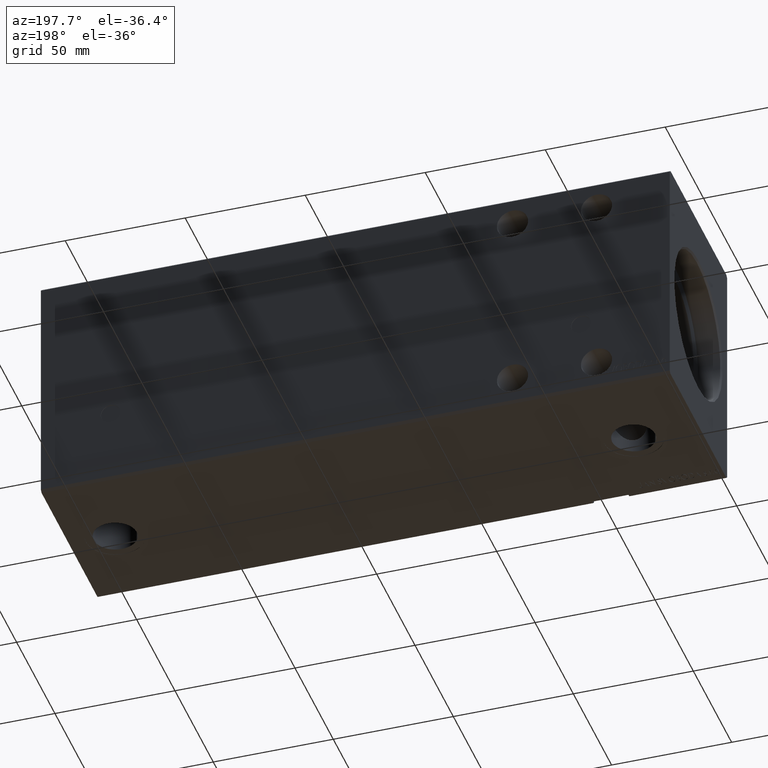
[diagram: clean part render]
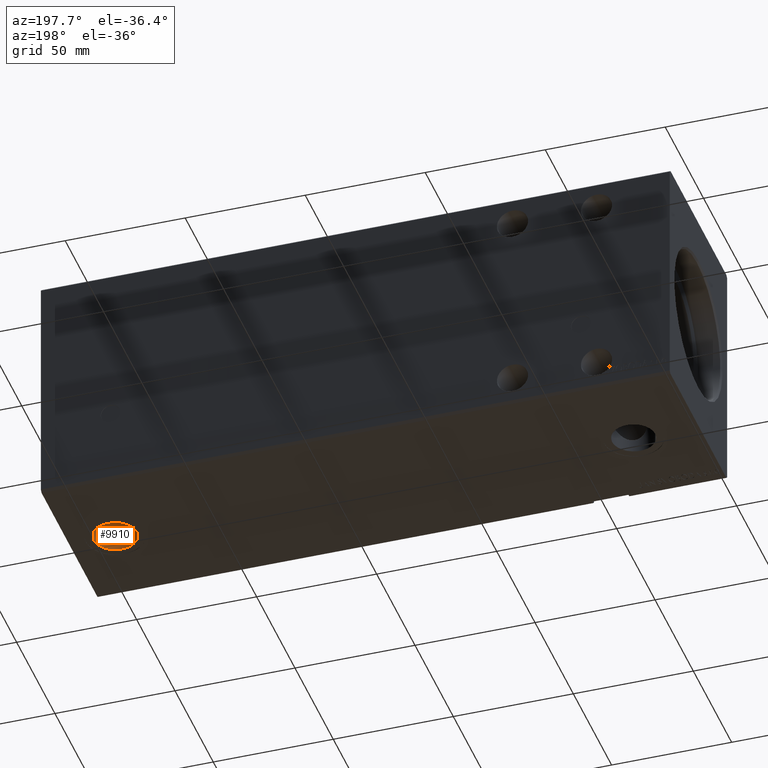
[diagram: same view with one face highlighted and labeled with its STEP entity id]
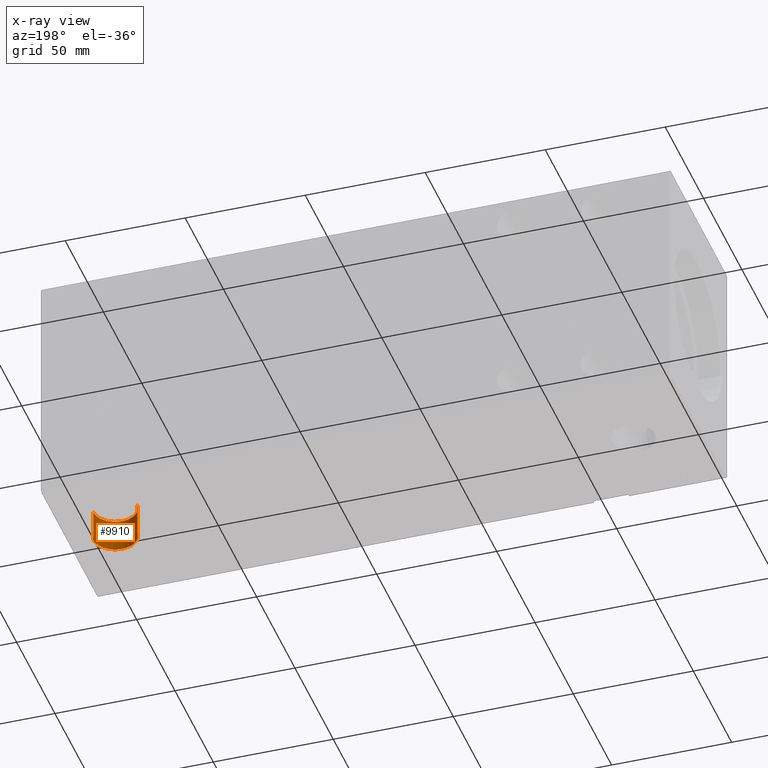
[diagram: x-ray of the same camera — body ghosted, the highlighted face saturated]
A machine part, auxiliary view. The second image highlights one B-rep face of the part: STEP entity #9910.
The next image is the same camera in x-ray: the body ghosted, the highlighted face saturated — about 0% of this face is hidden behind the body in this view.
In plain terms, the highlighted cylindrical surface (edge-blend (fillet) strip) has radius 9 mm, axis along (-0, -0, -1).
Its self-contained STEP definition (entity closure, byte-faithful):
#285 = CARTESIAN_POINT ( 'NONE',  ( 243.0000000000000284, -2.725862270335951630E-14, -49.89999999999999858 ) ) ;
#435 = EDGE_CURVE ( 'NONE', #21621, #7391, #26173, .T. ) ;
#1749 = DIRECTION ( 'NONE',  ( -1.000000000000000000, 0.000000000000000000, 0.000000000000000000 ) ) ;
#1820 = DIRECTION ( 'NONE',  ( -1.000000000000000000, 0.000000000000000000, 0.000000000000000000 ) ) ;
#3668 = AXIS2_PLACEMENT_3D ( 'NONE', #285, #6491, #10007 ) ;
#4010 = ORIENTED_EDGE ( 'NONE', *, *, #7655, .T. ) ;
#4095 = ORIENTED_EDGE ( 'NONE', *, *, #22827, .F. ) ;
#5153 = VERTEX_POINT ( 'NONE', #17066 ) ;
#6491 = DIRECTION ( 'NONE',  ( 0.000000000000000000, 0.000000000000000000, -1.000000000000000000 ) ) ;
#7309 = CIRCLE ( 'NONE', #10626, 9.000000000000007105 ) ;
#7391 = VERTEX_POINT ( 'NONE', #20590 ) ;
#7655 = EDGE_CURVE ( 'NONE', #5153, #21621, #12508, .T. ) ;
#9910 = ADVANCED_FACE ( 'NONE', ( #20249 ), #23581, .F. ) ;
#10007 = DIRECTION ( 'NONE',  ( -1.000000000000000000, 0.000000000000000000, 0.000000000000000000 ) ) ;
#10626 = AXIS2_PLACEMENT_3D ( 'NONE', #23907, #21201, #1749 ) ;
#12508 = LINE ( 'NONE', #25151, #36662 ) ;
#17066 = CARTESIAN_POINT ( 'NONE',  ( 252.0000000000000568, -2.615644058412689997E-14, -36.29999999999999716 ) ) ;
#20249 = FACE_OUTER_BOUND ( 'NONE', #39608, .T. ) ;
#20590 = CARTESIAN_POINT ( 'NONE',  ( 234.0000000000000000, -2.725862270335951630E-14, -49.89999999999999858 ) ) ;
#21066 = DIRECTION ( 'NONE',  ( -0.000000000000000000, -0.000000000000000000, -1.000000000000000000 ) ) ;
#21201 = DIRECTION ( 'NONE',  ( 0.000000000000000000, 0.000000000000000000, -1.000000000000000000 ) ) ;
#21250 = CARTESIAN_POINT ( 'NONE',  ( 234.0000000000000000, -2.725862270335951630E-14, -36.29999999999999716 ) ) ;
#21621 = VERTEX_POINT ( 'NONE', #32730 ) ;
#21732 = LINE ( 'NONE', #25055, #40933 ) ;
#22390 = ORIENTED_EDGE ( 'NONE', *, *, #23666, .F. ) ;
#22827 = EDGE_CURVE ( 'NONE', #5153, #39118, #7309, .T. ) ;
#23581 = CYLINDRICAL_SURFACE ( 'NONE', #36693, 9.000000000000007105 ) ;
#23666 = EDGE_CURVE ( 'NONE', #39118, #7391, #21732, .T. ) ;
#23907 = CARTESIAN_POINT ( 'NONE',  ( 243.0000000000000284, -2.725862270335951630E-14, -36.29999999999999716 ) ) ;
#25055 = CARTESIAN_POINT ( 'NONE',  ( 234.0000000000000000, -2.725862270335951630E-14, -36.29999999999999716 ) ) ;
#25151 = CARTESIAN_POINT ( 'NONE',  ( 252.0000000000000568, -2.615644058412689681E-14, -36.29999999999999716 ) ) ;
#26173 = CIRCLE ( 'NONE', #3668, 9.000000000000007105 ) ;
#30207 = CARTESIAN_POINT ( 'NONE',  ( 243.0000000000000284, -2.725862270335951630E-14, -36.29999999999999716 ) ) ;
#31283 = DIRECTION ( 'NONE',  ( -0.000000000000000000, -0.000000000000000000, -1.000000000000000000 ) ) ;
#32730 = CARTESIAN_POINT ( 'NONE',  ( 252.0000000000000568, -2.615644058412689997E-14, -49.89999999999999858 ) ) ;
#36662 = VECTOR ( 'NONE', #37815, 1000.000000000000000 ) ;
#36693 = AXIS2_PLACEMENT_3D ( 'NONE', #30207, #21066, #1820 ) ;
#37815 = DIRECTION ( 'NONE',  ( -0.000000000000000000, -0.000000000000000000, -1.000000000000000000 ) ) ;
#39118 = VERTEX_POINT ( 'NONE', #21250 ) ;
#39335 = ORIENTED_EDGE ( 'NONE', *, *, #435, .T. ) ;
#39608 = EDGE_LOOP ( 'NONE', ( #4095, #4010, #39335, #22390 ) ) ;
#40933 = VECTOR ( 'NONE', #31283, 1000.000000000000000 ) ;